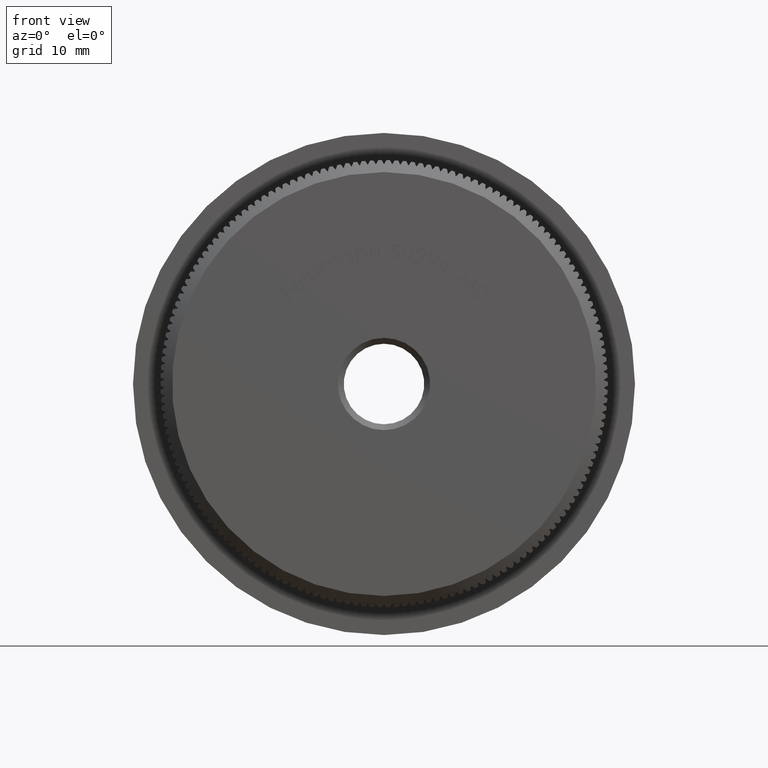
[diagram: clean part render]
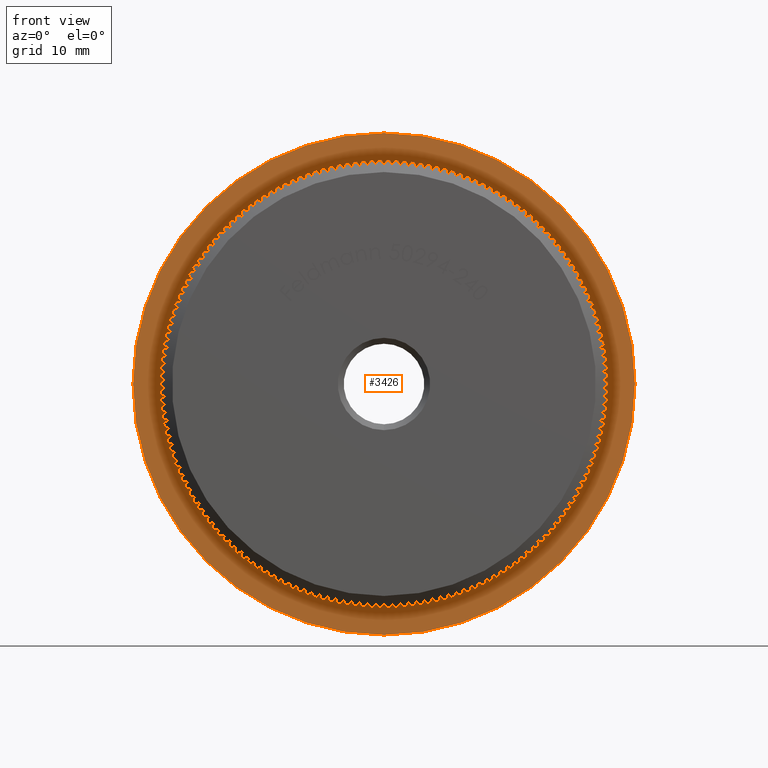
[diagram: same view with one face highlighted and labeled with its STEP entity id]
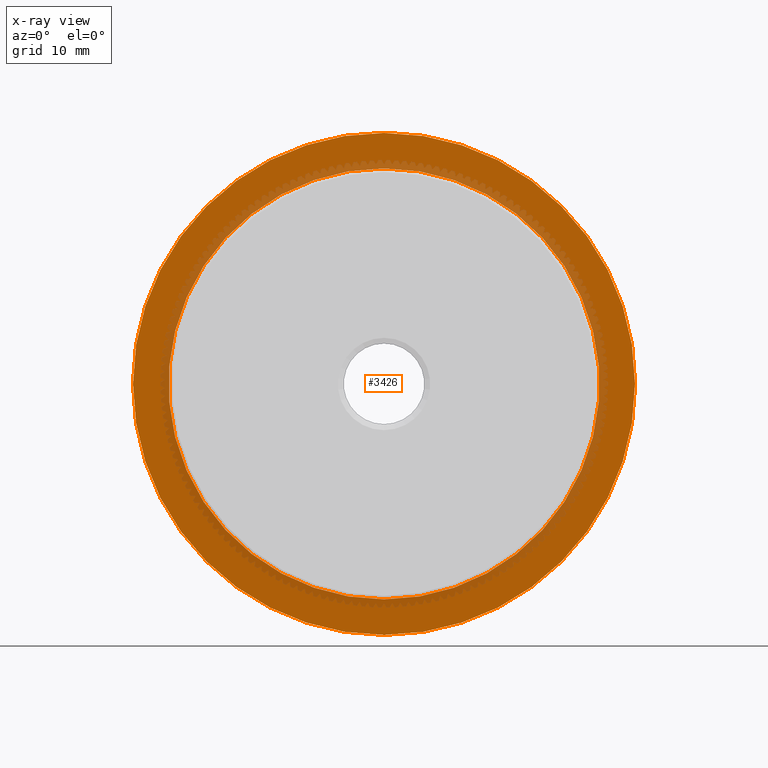
[diagram: x-ray of the same camera — body ghosted, the highlighted face saturated]
A machine part, front view. The second image highlights one B-rep face of the part: STEP entity #3426.
The next image is the same camera in x-ray: the body ghosted, the highlighted face saturated — about 20% of this face is hidden behind the body in this view.
In plain terms, the highlighted planar face has unit normal (0, -1, -0).
Its self-contained STEP definition (entity closure, byte-faithful):
#302 = EDGE_CURVE ( 'NONE', #7723, #15731, #5471, .T. ) ;
#718 = EDGE_CURVE ( 'NONE', #15866, #18307, #15098, .T. ) ;
#1639 = FACE_OUTER_BOUND ( 'NONE', #13956, .T. ) ;
#1787 = AXIS2_PLACEMENT_3D ( 'NONE', #28832, #18972, #14593 ) ;
#1935 = DIRECTION ( 'NONE',  ( -0.0000000000000000000, -1.000000000000000000, -0.0000000000000000000 ) ) ;
#2427 = AXIS2_PLACEMENT_3D ( 'NONE', #28072, #1935, #11354 ) ;
#2695 = PLANE ( 'NONE',  #1787 ) ;
#3144 = FACE_BOUND ( 'NONE', #3770, .T. ) ;
#3426 = ADVANCED_FACE ( 'NONE', ( #1639, #3144 ), #2695, .T. ) ;
#3770 = EDGE_LOOP ( 'NONE', ( #20061, #14660 ) ) ;
#3845 = CARTESIAN_POINT ( 'NONE',  ( 0.0000000000000000000, 8.000000000000000000, 0.0000000000000000000 ) ) ;
#4062 = CARTESIAN_POINT ( 'NONE',  ( 2.271719812418340100E-015, 8.000000000000000000, 18.19999999999999900 ) ) ;
#5471 = CIRCLE ( 'NONE', #12214, 21.19999999999999900 ) ;
#5699 = CARTESIAN_POINT ( 'NONE',  ( 0.0000000000000000000, 8.000000000000000000, -18.19999999999999900 ) ) ;
#6057 = CARTESIAN_POINT ( 'NONE',  ( 0.0000000000000000000, 8.000000000000000000, 0.0000000000000000000 ) ) ;
#7305 = ORIENTED_EDGE ( 'NONE', *, *, #18833, .T. ) ;
#7420 = CIRCLE ( 'NONE', #2427, 18.19999999999999900 ) ;
#7515 = EDGE_CURVE ( 'NONE', #18307, #15866, #7420, .T. ) ;
#7723 = VERTEX_POINT ( 'NONE', #22642 ) ;
#8453 = DIRECTION ( 'NONE',  ( 0.0000000000000000000, 0.0000000000000000000, -1.000000000000000000 ) ) ;
#11354 = DIRECTION ( 'NONE',  ( 0.0000000000000000000, 0.0000000000000000000, -1.000000000000000000 ) ) ;
#12214 = AXIS2_PLACEMENT_3D ( 'NONE', #3845, #25171, #27785 ) ;
#12424 = ORIENTED_EDGE ( 'NONE', *, *, #302, .T. ) ;
#13956 = EDGE_LOOP ( 'NONE', ( #7305, #12424 ) ) ;
#14583 = CARTESIAN_POINT ( 'NONE',  ( 0.0000000000000000000, 8.000000000000000000, 0.0000000000000000000 ) ) ;
#14593 = DIRECTION ( 'NONE',  ( 0.0000000000000000000, 0.0000000000000000000, -1.000000000000000000 ) ) ;
#14660 = ORIENTED_EDGE ( 'NONE', *, *, #718, .F. ) ;
#15098 = CIRCLE ( 'NONE', #16972, 18.19999999999999900 ) ;
#15595 = DIRECTION ( 'NONE',  ( -0.0000000000000000000, -1.000000000000000000, -0.0000000000000000000 ) ) ;
#15731 = VERTEX_POINT ( 'NONE', #17757 ) ;
#15866 = VERTEX_POINT ( 'NONE', #4062 ) ;
#16649 = AXIS2_PLACEMENT_3D ( 'NONE', #14583, #21947, #24322 ) ;
#16972 = AXIS2_PLACEMENT_3D ( 'NONE', #6057, #15595, #8453 ) ;
#17757 = CARTESIAN_POINT ( 'NONE',  ( 0.0000000000000000000, 8.000000000000000000, -21.19999999999999900 ) ) ;
#18307 = VERTEX_POINT ( 'NONE', #5699 ) ;
#18833 = EDGE_CURVE ( 'NONE', #15731, #7723, #20483, .T. ) ;
#18972 = DIRECTION ( 'NONE',  ( 0.0000000000000000000, -1.000000000000000000, -0.0000000000000000000 ) ) ;
#20061 = ORIENTED_EDGE ( 'NONE', *, *, #7515, .F. ) ;
#20483 = CIRCLE ( 'NONE', #16649, 21.19999999999999900 ) ;
#21947 = DIRECTION ( 'NONE',  ( -0.0000000000000000000, -1.000000000000000000, -0.0000000000000000000 ) ) ;
#22642 = CARTESIAN_POINT ( 'NONE',  ( 2.596251214192388800E-015, 8.000000000000000000, 21.19999999999999900 ) ) ;
#24322 = DIRECTION ( 'NONE',  ( 0.0000000000000000000, 0.0000000000000000000, -1.000000000000000000 ) ) ;
#25171 = DIRECTION ( 'NONE',  ( -0.0000000000000000000, -1.000000000000000000, -0.0000000000000000000 ) ) ;
#27785 = DIRECTION ( 'NONE',  ( 0.0000000000000000000, 0.0000000000000000000, -1.000000000000000000 ) ) ;
#28072 = CARTESIAN_POINT ( 'NONE',  ( 0.0000000000000000000, 8.000000000000000000, 0.0000000000000000000 ) ) ;
#28832 = CARTESIAN_POINT ( 'NONE',  ( 18.19999999999999900, 8.000000000000000000, 0.0000000000000000000 ) ) ;